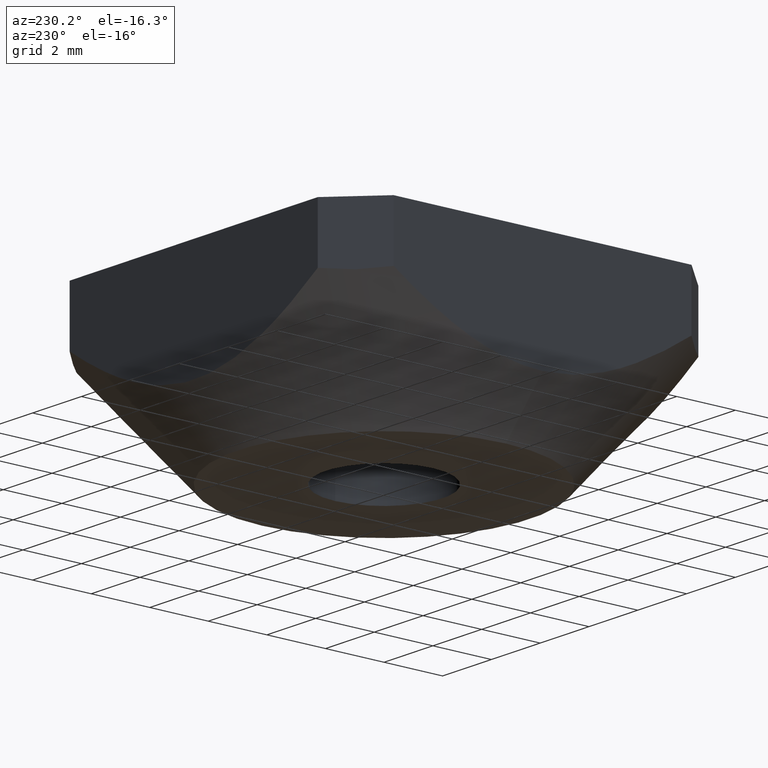
[diagram: clean part render]
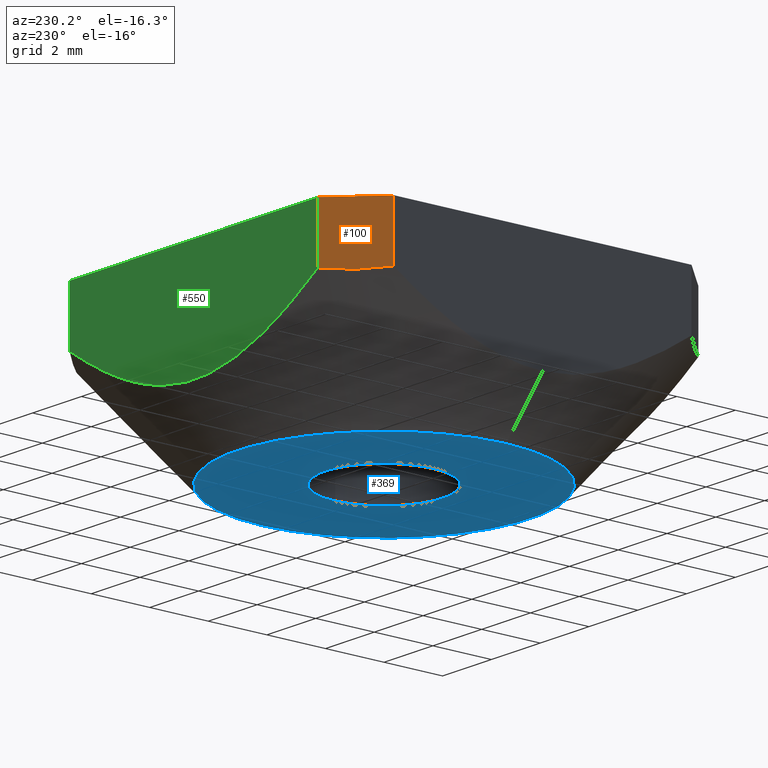
[diagram: same view with three faces highlighted in distinct colors, each labeled with its STEP entity id]
A machine part, auxiliary view with three faces highlighted in distinct colors.
Their STEP definitions:

[orange] entity #100 — the highlighted planar face has unit normal (-0.7071, 0.7071, 0).
#10 = ORIENTED_EDGE ( 'NONE', *, *, #465, .T. ) ;
#36 = EDGE_CURVE ( 'NONE', #235, #486, #504, .T. ) ;
#38 = CARTESIAN_POINT ( 'NONE',  ( -6.499999999999999112, 5.085786437626910406, 0.0000000000000000000 ) ) ;
#81 = CARTESIAN_POINT ( 'NONE',  ( -5.085786437677106697, 6.500000000012475354, -1.933334202242377842 ) ) ;
#83 = ORIENTED_EDGE ( 'NONE', *, *, #554, .F. ) ;
#90 = CARTESIAN_POINT ( 'NONE',  ( -5.085786437626904188, 6.500000000000005329, 0.0000000000000000000 ) ) ;
#92 = CARTESIAN_POINT ( 'NONE',  ( -5.085786437626904188, 6.500000000000005329, 0.0000000000000000000 ) ) ;
#100 = ADVANCED_FACE ( 'NONE', ( #250 ), #409, .T. ) ;
#104 = CARTESIAN_POINT ( 'NONE',  ( -5.085786437626904188, 6.500000000000005329, 0.0000000000000000000 ) ) ;
#173 = VECTOR ( 'NONE', #294, 1000.000000000000000 ) ;
#180 = DIRECTION ( 'NONE',  ( -0.7071067811865474617, -0.7071067811865474617, 0.0000000000000000000 ) ) ;
#189 = B_SPLINE_CURVE_WITH_KNOTS ( 'NONE', 3,
 ( #193, #236, #476, #284 ),
 .UNSPECIFIED., .F., .F.,
 ( 4, 4 ),
 ( 6.051050471646755322E-14, 0.002000000000007149704 ),
 .UNSPECIFIED. ) ;
#193 = CARTESIAN_POINT ( 'NONE',  ( -5.085786437677106697, 6.500000000012475354, -1.933334202242377842 ) ) ;
#235 = VERTEX_POINT ( 'NONE', #104 ) ;
#236 = CARTESIAN_POINT ( 'NONE',  ( -5.557190958361342581, 6.028595479226082077, -2.021894486487707532 ) ) ;
#250 = FACE_OUTER_BOUND ( 'NONE', #446, .T. ) ;
#255 = ORIENTED_EDGE ( 'NONE', *, *, #36, .F. ) ;
#264 = VECTOR ( 'NONE', #420, 1000.000000000000000 ) ;
#268 = EDGE_CURVE ( 'NONE', #235, #555, #483, .T. ) ;
#284 = CARTESIAN_POINT ( 'NONE',  ( -6.500000000012470025, 5.085786437677112026, -1.933334202242378286 ) ) ;
#294 = DIRECTION ( 'NONE',  ( -0.0000000000000000000, -0.0000000000000000000, -1.000000000000000000 ) ) ;
#372 = VERTEX_POINT ( 'NONE', #526 ) ;
#391 = VECTOR ( 'NONE', #450, 1000.000000000000114 ) ;
#405 = DIRECTION ( 'NONE',  ( -0.7071067811865475727, 0.7071067811865475727, 0.0000000000000000000 ) ) ;
#409 = PLANE ( 'NONE',  #417 ) ;
#417 = AXIS2_PLACEMENT_3D ( 'NONE', #90, #405, #180 ) ;
#420 = DIRECTION ( 'NONE',  ( -0.0000000000000000000, -0.0000000000000000000, -1.000000000000000000 ) ) ;
#446 = EDGE_LOOP ( 'NONE', ( #255, #484, #10, #83 ) ) ;
#450 = DIRECTION ( 'NONE',  ( -0.7071067811865474617, -0.7071067811865474617, 0.0000000000000000000 ) ) ;
#465 = EDGE_CURVE ( 'NONE', #555, #372, #189, .T. ) ;
#476 = CARTESIAN_POINT ( 'NONE',  ( -6.028595479244057920, 5.557190958382851598, -2.021894486498657439 ) ) ;
#483 = LINE ( 'NONE', #513, #264 ) ;
#484 = ORIENTED_EDGE ( 'NONE', *, *, #268, .T. ) ;
#486 = VERTEX_POINT ( 'NONE', #38 ) ;
#504 = LINE ( 'NONE', #92, #391 ) ;
#513 = CARTESIAN_POINT ( 'NONE',  ( -5.085786437626904188, 6.500000000000005329, 0.0000000000000000000 ) ) ;
#526 = CARTESIAN_POINT ( 'NONE',  ( -6.500000000012470025, 5.085786437677112026, -1.933334202242378286 ) ) ;
#537 = LINE ( 'NONE', #565, #173 ) ;
#554 = EDGE_CURVE ( 'NONE', #486, #372, #537, .T. ) ;
#555 = VERTEX_POINT ( 'NONE', #81 ) ;
#565 = CARTESIAN_POINT ( 'NONE',  ( -6.499999999999999112, 5.085786437626910406, 0.0000000000000000000 ) ) ;

[blue] entity #369 — the highlighted planar face has unit normal (0, 0, 1).
#23 = CARTESIAN_POINT ( 'NONE',  ( -4.683470219463361509E-16, 1.335708759934739698E-15, -5.500000002871543892 ) ) ;
#27 = CARTESIAN_POINT ( 'NONE',  ( -4.683470219463361509E-16, 1.335708759934739698E-15, -5.500000002871543892 ) ) ;
#32 = CIRCLE ( 'NONE', #431, 5.000000003148241667 ) ;
#44 = VERTEX_POINT ( 'NONE', #177 ) ;
#45 = AXIS2_PLACEMENT_3D ( 'NONE', #154, #290, #471 ) ;
#70 = DIRECTION ( 'NONE',  ( -0.0000000000000000000, -0.0000000000000000000, 1.000000000000000000 ) ) ;
#78 = CIRCLE ( 'NONE', #134, 5.000000003148241667 ) ;
#93 = FACE_BOUND ( 'NONE', #452, .T. ) ;
#109 = DIRECTION ( 'NONE',  ( 1.000000000000000000, 0.0000000000000000000, 1.734723474884541410E-16 ) ) ;
#110 = CARTESIAN_POINT ( 'NONE',  ( -5.000000003148242556, 2.347935449360633441E-15, -5.500000002871544780 ) ) ;
#134 = AXIS2_PLACEMENT_3D ( 'NONE', #27, #201, #109 ) ;
#141 = EDGE_CURVE ( 'NONE', #276, #44, #32, .T. ) ;
#154 = CARTESIAN_POINT ( 'NONE',  ( 0.0000000000000000000, 0.0000000000000000000, -5.500000000000000000 ) ) ;
#176 = EDGE_CURVE ( 'NONE', #395, #407, #370, .T. ) ;
#177 = CARTESIAN_POINT ( 'NONE',  ( 5.000000003148240779, 1.335708759934739698E-15, -5.500000002871543003 ) ) ;
#190 = ORIENTED_EDGE ( 'NONE', *, *, #213, .F. ) ;
#201 = DIRECTION ( 'NONE',  ( -1.112060755793410790E-16, 1.112060755793410790E-16, 1.000000000000000000 ) ) ;
#206 = EDGE_LOOP ( 'NONE', ( #190, #572 ) ) ;
#213 = EDGE_CURVE ( 'NONE', #44, #276, #78, .T. ) ;
#237 = DIRECTION ( 'NONE',  ( -1.112060755793410790E-16, 1.112060755793410790E-16, 1.000000000000000000 ) ) ;
#261 = EDGE_CURVE ( 'NONE', #407, #395, #489, .T. ) ;
#276 = VERTEX_POINT ( 'NONE', #110 ) ;
#285 = DIRECTION ( 'NONE',  ( 1.000000000000000000, 0.0000000000000000000, 1.734723474884541410E-16 ) ) ;
#290 = DIRECTION ( 'NONE',  ( -0.0000000000000000000, -0.0000000000000000000, 1.000000000000000000 ) ) ;
#292 = DIRECTION ( 'NONE',  ( 1.000000000000000000, 0.0000000000000000000, -0.0000000000000000000 ) ) ;
#329 = CARTESIAN_POINT ( 'NONE',  ( -2.000000000000000000, 0.0000000000000000000, -5.500000000000000000 ) ) ;
#336 = AXIS2_PLACEMENT_3D ( 'NONE', #479, #564, #292 ) ;
#367 = AXIS2_PLACEMENT_3D ( 'NONE', #552, #70, #561 ) ;
#369 = ADVANCED_FACE ( 'NONE', ( #93, #403 ), #388, .F. ) ;
#370 = CIRCLE ( 'NONE', #367, 2.000000000000000000 ) ;
#388 = PLANE ( 'NONE',  #336 ) ;
#395 = VERTEX_POINT ( 'NONE', #329 ) ;
#403 = FACE_OUTER_BOUND ( 'NONE', #206, .T. ) ;
#404 = ORIENTED_EDGE ( 'NONE', *, *, #176, .T. ) ;
#407 = VERTEX_POINT ( 'NONE', #466 ) ;
#416 = ORIENTED_EDGE ( 'NONE', *, *, #261, .T. ) ;
#431 = AXIS2_PLACEMENT_3D ( 'NONE', #23, #237, #285 ) ;
#452 = EDGE_LOOP ( 'NONE', ( #404, #416 ) ) ;
#466 = CARTESIAN_POINT ( 'NONE',  ( 2.000000000000000000, 2.449293598294706414E-16, -5.500000000000000000 ) ) ;
#471 = DIRECTION ( 'NONE',  ( -1.000000000000000000, 0.0000000000000000000, 0.0000000000000000000 ) ) ;
#479 = CARTESIAN_POINT ( 'NONE',  ( 7.734518000000000462E-16, 5.551114999999999878E-16, -5.500000000000000000 ) ) ;
#489 = CIRCLE ( 'NONE', #45, 2.000000000000000000 ) ;
#552 = CARTESIAN_POINT ( 'NONE',  ( 0.0000000000000000000, 0.0000000000000000000, -5.500000000000000000 ) ) ;
#561 = DIRECTION ( 'NONE',  ( -1.000000000000000000, 0.0000000000000000000, 0.0000000000000000000 ) ) ;
#564 = DIRECTION ( 'NONE',  ( 0.0000000000000000000, 0.0000000000000000000, 1.000000000000000000 ) ) ;
#572 = ORIENTED_EDGE ( 'NONE', *, *, #141, .F. ) ;

[green] entity #550 — the highlighted planar face has unit normal (0, 1, 0).
#26 = CARTESIAN_POINT ( 'NONE',  ( -5.085786437677106697, 6.500000000012475354, -1.933334202242377842 ) ) ;
#35 = CARTESIAN_POINT ( 'NONE',  ( 5.085786437626906853, 6.500000000000003553, 0.0000000000000000000 ) ) ;
#60 = B_SPLINE_CURVE_WITH_KNOTS ( 'NONE', 3,
 ( #365, #421, #376, #428, #461, #156, #150, #472, #202, #469, #199, #508, #544, #515, #113, #518, #280, #26 ),
 .UNSPECIFIED., .F., .F.,
 ( 4, 2, 2, 2, 2, 2, 2, 2, 4 ),
 ( 8.321467144627602380E-14, 0.001375126083683638313, 0.002750252167284061942, 0.004125378250884485787, 0.005500504334484909198, 0.006875630418085332610, 0.008250756501685756888, 0.009625882585286179433, 0.01100100866888660371 ),
 .UNSPECIFIED. ) ;
#81 = CARTESIAN_POINT ( 'NONE',  ( -5.085786437677106697, 6.500000000012475354, -1.933334202242377842 ) ) ;
#87 = ORIENTED_EDGE ( 'NONE', *, *, #240, .T. ) ;
#91 = ORIENTED_EDGE ( 'NONE', *, *, #456, .T. ) ;
#104 = CARTESIAN_POINT ( 'NONE',  ( -5.085786437626904188, 6.500000000000005329, 0.0000000000000000000 ) ) ;
#105 = EDGE_LOOP ( 'NONE', ( #399, #87, #91, #188 ) ) ;
#113 = CARTESIAN_POINT ( 'NONE',  ( -3.516309706215212660, 6.500000000000002665, -2.888207160138617002 ) ) ;
#130 = FACE_OUTER_BOUND ( 'NONE', #105, .T. ) ;
#150 = CARTESIAN_POINT ( 'NONE',  ( 1.815581894366168791, 6.500000000000003553, -3.598278178908117297 ) ) ;
#156 = CARTESIAN_POINT ( 'NONE',  ( 2.258066242822476255, 6.500000000000003553, -3.449969955218920692 ) ) ;
#162 = AXIS2_PLACEMENT_3D ( 'NONE', #478, #348, #253 ) ;
#187 = VECTOR ( 'NONE', #557, 1000.000000000000000 ) ;
#188 = ORIENTED_EDGE ( 'NONE', *, *, #268, .F. ) ;
#197 = VERTEX_POINT ( 'NONE', #549 ) ;
#199 = CARTESIAN_POINT ( 'NONE',  ( -0.9208216822838610760, 6.500000000000002665, -3.800336665431251593 ) ) ;
#202 = CARTESIAN_POINT ( 'NONE',  ( 0.4648848418447535380, 6.500000000000003553, -3.855480798021075461 ) ) ;
#232 = LINE ( 'NONE', #433, #434 ) ;
#235 = VERTEX_POINT ( 'NONE', #104 ) ;
#240 = EDGE_CURVE ( 'NONE', #491, #197, #415, .T. ) ;
#245 = CARTESIAN_POINT ( 'NONE',  ( 5.085786437626906853, 6.500000000000003553, 0.0000000000000000000 ) ) ;
#251 = DIRECTION ( 'NONE',  ( -1.000000000000000000, -0.0000000000000000000, 0.0000000000000000000 ) ) ;
#253 = DIRECTION ( 'NONE',  ( 0.0000000000000000000, -0.0000000000000000000, 1.000000000000000000 ) ) ;
#264 = VECTOR ( 'NONE', #420, 1000.000000000000000 ) ;
#268 = EDGE_CURVE ( 'NONE', #235, #555, #483, .T. ) ;
#280 = CARTESIAN_POINT ( 'NONE',  ( -4.703623369059489079, 6.500000000000002665, -2.191522821825996559 ) ) ;
#298 = PLANE ( 'NONE',  #162 ) ;
#348 = DIRECTION ( 'NONE',  ( 0.0000000000000000000, 1.000000000000000000, 0.0000000000000000000 ) ) ;
#365 = CARTESIAN_POINT ( 'NONE',  ( 5.085786437677108474, 6.500000000012474466, -1.933334202242375177 ) ) ;
#376 = CARTESIAN_POINT ( 'NONE',  ( 4.314559355035864741, 6.500000000000004441, -2.436630007698926459 ) ) ;
#399 = ORIENTED_EDGE ( 'NONE', *, *, #534, .F. ) ;
#415 = LINE ( 'NONE', #245, #187 ) ;
#420 = DIRECTION ( 'NONE',  ( -0.0000000000000000000, -0.0000000000000000000, -1.000000000000000000 ) ) ;
#421 = CARTESIAN_POINT ( 'NONE',  ( 4.703608218064447399, 6.499999999966565412, -2.191533057788421335 ) ) ;
#428 = CARTESIAN_POINT ( 'NONE',  ( 3.516232638360159868, 6.500000000000003553, -2.888248432145468669 ) ) ;
#433 = CARTESIAN_POINT ( 'NONE',  ( 8.326673000000000714E-16, 6.500000000000003553, 0.0000000000000000000 ) ) ;
#434 = VECTOR ( 'NONE', #251, 1000.000000000000000 ) ;
#456 = EDGE_CURVE ( 'NONE', #197, #555, #60, .T. ) ;
#461 = CARTESIAN_POINT ( 'NONE',  ( 3.107021229645465343, 6.500000000000003553, -3.094896613372098315 ) ) ;
#469 = CARTESIAN_POINT ( 'NONE',  ( -0.4653350873336496996, 6.500000000000003553, -3.855445476124739201 ) ) ;
#472 = CARTESIAN_POINT ( 'NONE',  ( 0.9205997802961283227, 6.500000000000003553, -3.800373221879208341 ) ) ;
#478 = CARTESIAN_POINT ( 'NONE',  ( 5.085786437626906853, 6.500000000000003553, 0.0000000000000000000 ) ) ;
#483 = LINE ( 'NONE', #513, #264 ) ;
#491 = VERTEX_POINT ( 'NONE', #35 ) ;
#508 = CARTESIAN_POINT ( 'NONE',  ( -1.815743295979880489, 6.500000000000003553, -3.598228176136374135 ) ) ;
#513 = CARTESIAN_POINT ( 'NONE',  ( -5.085786437626904188, 6.500000000000005329, 0.0000000000000000000 ) ) ;
#515 = CARTESIAN_POINT ( 'NONE',  ( -3.107124692420668133, 6.500000000000003553, -3.094845548749639796 ) ) ;
#518 = CARTESIAN_POINT ( 'NONE',  ( -4.314592221427059116, 6.500000000000005329, -2.436609088893727293 ) ) ;
#534 = EDGE_CURVE ( 'NONE', #491, #235, #232, .T. ) ;
#544 = CARTESIAN_POINT ( 'NONE',  ( -2.258238322193991898, 6.500000000000002665, -3.449905772485382105 ) ) ;
#549 = CARTESIAN_POINT ( 'NONE',  ( 5.085786437677108474, 6.500000000012474466, -1.933334202242375177 ) ) ;
#550 = ADVANCED_FACE ( 'NONE', ( #130 ), #298, .T. ) ;
#555 = VERTEX_POINT ( 'NONE', #81 ) ;
#557 = DIRECTION ( 'NONE',  ( -0.0000000000000000000, 0.0000000000000000000, -1.000000000000000000 ) ) ;